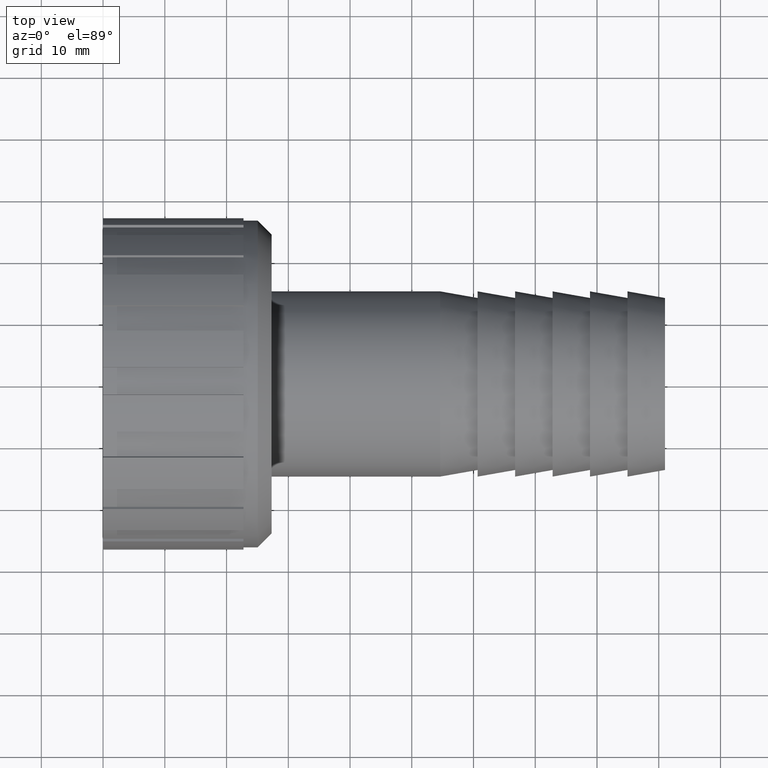
[diagram: clean part render]
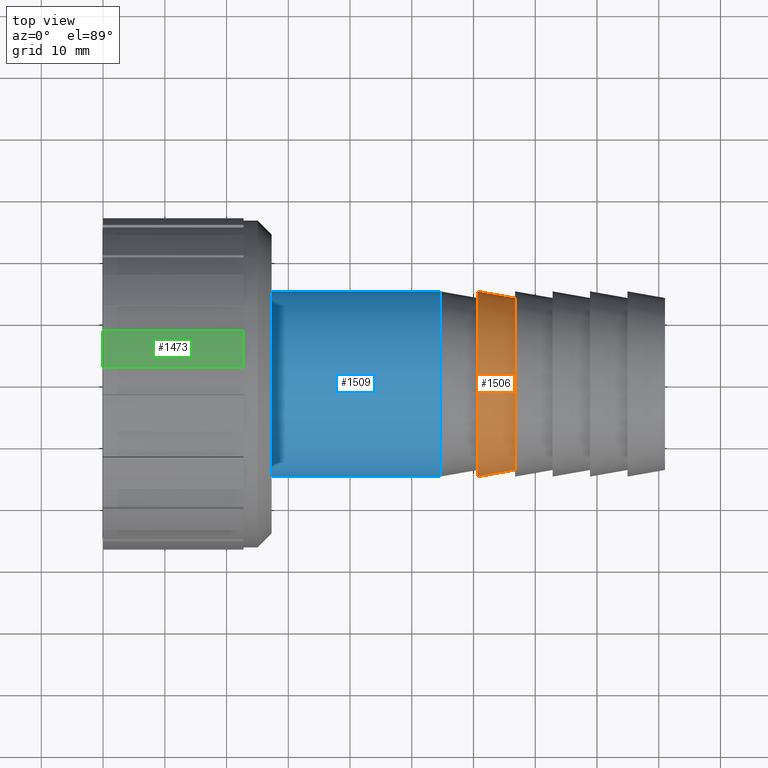
[diagram: same view with three faces highlighted in distinct colors, each labeled with its STEP entity id]
A machine part, top view with three faces highlighted in distinct colors.
Their STEP definitions:

[orange] entity #1506 — the highlighted conical surface has half-angle 10 deg.
#20=CONICAL_SURFACE('',#1672,14.465141491851,10.);
#58=FACE_BOUND('',#326,.T.);
#141=CIRCLE('',#1671,13.930282983702);
#142=CIRCLE('',#1673,15.);
#225=FACE_OUTER_BOUND('',#325,.T.);
#325=EDGE_LOOP('',(#1361));
#326=EDGE_LOOP('',(#1362));
#732=VERTEX_POINT('',#2574);
#733=VERTEX_POINT('',#2577);
#943=EDGE_CURVE('',#732,#732,#141,.T.);
#944=EDGE_CURVE('',#733,#733,#142,.T.);
#1361=ORIENTED_EDGE('',*,*,#943,.T.);
#1362=ORIENTED_EDGE('',*,*,#944,.F.);
#1506=ADVANCED_FACE('',(#225,#58),#20,.T.);
#1671=AXIS2_PLACEMENT_3D('',#2575,#2127,#2128);
#1672=AXIS2_PLACEMENT_3D('',#2576,#2129,#2130);
#1673=AXIS2_PLACEMENT_3D('',#2578,#2131,#2132);
#2127=DIRECTION('center_axis',(-1.,0.,0.));
#2128=DIRECTION('ref_axis',(0.,0.,1.));
#2129=DIRECTION('center_axis',(-1.,0.,0.));
#2130=DIRECTION('ref_axis',(0.,-1.,0.));
#2131=DIRECTION('center_axis',(-1.,0.,0.));
#2132=DIRECTION('ref_axis',(0.,0.,1.));
#2574=CARTESIAN_POINT('',(66.7333333333333,-13.930282983702,0.));
#2575=CARTESIAN_POINT('Origin',(66.7333333333333,0.,0.));
#2576=CARTESIAN_POINT('Origin',(63.7,0.,0.));
#2577=CARTESIAN_POINT('',(60.6666666666667,-15.,0.));
#2578=CARTESIAN_POINT('Origin',(60.6666666666667,0.,0.));

[blue] entity #1509 — the highlighted cylindrical surface (bore or boss wall) has radius 15 mm, axis along (-1, 0, 0).
#41=CYLINDRICAL_SURFACE('',#1678,15.);
#61=FACE_BOUND('',#332,.T.);
#129=CIRCLE('',#1646,15.);
#144=CIRCLE('',#1677,15.);
#228=FACE_OUTER_BOUND('',#331,.T.);
#331=EDGE_LOOP('',(#1367));
#332=EDGE_LOOP('',(#1368));
#720=VERTEX_POINT('',#2537);
#735=VERTEX_POINT('',#2583);
#931=EDGE_CURVE('',#720,#720,#129,.T.);
#946=EDGE_CURVE('',#735,#735,#144,.T.);
#1367=ORIENTED_EDGE('',*,*,#946,.T.);
#1368=ORIENTED_EDGE('',*,*,#931,.F.);
#1509=ADVANCED_FACE('',(#228,#61),#41,.T.);
#1646=AXIS2_PLACEMENT_3D('',#2538,#2077,#2078);
#1677=AXIS2_PLACEMENT_3D('',#2584,#2139,#2140);
#1678=AXIS2_PLACEMENT_3D('',#2585,#2141,#2142);
#2077=DIRECTION('center_axis',(-1.,0.,0.));
#2078=DIRECTION('ref_axis',(0.,0.,1.));
#2139=DIRECTION('center_axis',(-1.,0.,0.));
#2140=DIRECTION('ref_axis',(0.,0.,1.));
#2141=DIRECTION('center_axis',(-1.,0.,0.));
#2142=DIRECTION('ref_axis',(0.,-1.,0.));
#2537=CARTESIAN_POINT('',(27.3,-15.,0.));
#2538=CARTESIAN_POINT('Origin',(27.3,0.,0.));
#2583=CARTESIAN_POINT('',(54.6,-15.,0.));
#2584=CARTESIAN_POINT('Origin',(54.6,0.,0.));
#2585=CARTESIAN_POINT('Origin',(40.95,0.,0.));

[green] entity #1473 — the highlighted cylindrical surface (partial cylindrical patch) has radius 26.907 mm, axis along (-1, 0, 0).
#22=CYLINDRICAL_SURFACE('',#1624,26.907);
#65=CIRCLE('',#1546,26.907);
#95=CIRCLE('',#1577,26.907);
#192=FACE_OUTER_BOUND('',#277,.T.);
#277=EDGE_LOOP('',(#1196,#1197,#1198,#1199));
#450=LINE('',#2410,#578);
#457=LINE('',#2510,#585);
#578=VECTOR('',#1858,22.75);
#585=VECTOR('',#2031,22.75);
#705=VERTEX_POINT('',#2406);
#707=VERTEX_POINT('',#2409);
#712=VERTEX_POINT('',#2422);
#714=VERTEX_POINT('',#2456);
#853=EDGE_CURVE('',#707,#705,#450,.T.);
#861=EDGE_CURVE('',#712,#705,#65,.T.);
#891=EDGE_CURVE('',#714,#707,#95,.T.);
#925=EDGE_CURVE('',#712,#714,#457,.T.);
#1196=ORIENTED_EDGE('',*,*,#853,.T.);
#1197=ORIENTED_EDGE('',*,*,#861,.F.);
#1198=ORIENTED_EDGE('',*,*,#925,.T.);
#1199=ORIENTED_EDGE('',*,*,#891,.T.);
#1473=ADVANCED_FACE('',(#192),#22,.T.);
#1546=AXIS2_PLACEMENT_3D('',#2424,#1871,#1872);
#1577=AXIS2_PLACEMENT_3D('',#2457,#1933,#1934);
#1624=AXIS2_PLACEMENT_3D('',#2509,#2029,#2030);
#1858=DIRECTION('',(-1.,0.,0.));
#1871=DIRECTION('center_axis',(-1.,0.,0.));
#1872=DIRECTION('ref_axis',(0.,0.,1.));
#1933=DIRECTION('center_axis',(-1.,0.,0.));
#1934=DIRECTION('ref_axis',(0.,0.,1.));
#2029=DIRECTION('center_axis',(-1.,0.,0.));
#2030=DIRECTION('ref_axis',(0.,-1.,0.));
#2031=DIRECTION('',(1.,0.,0.));
#2406=CARTESIAN_POINT('',(0.,8.18947894830803,25.6304327617623));
#2409=CARTESIAN_POINT('',(22.75,8.18947894830803,25.6304327617623));
#2410=CARTESIAN_POINT('',(11.375,8.18947894830803,25.6304327617623));
#2422=CARTESIAN_POINT('',(0.,2.24225,26.8134101512191));
#2424=CARTESIAN_POINT('Origin',(0.,0.,0.));
#2456=CARTESIAN_POINT('',(22.75,2.24225,26.8134101512191));
#2457=CARTESIAN_POINT('Origin',(22.75,0.,0.));
#2509=CARTESIAN_POINT('Origin',(11.375,0.,0.));
#2510=CARTESIAN_POINT('',(11.375,2.24225,26.8134101512191));